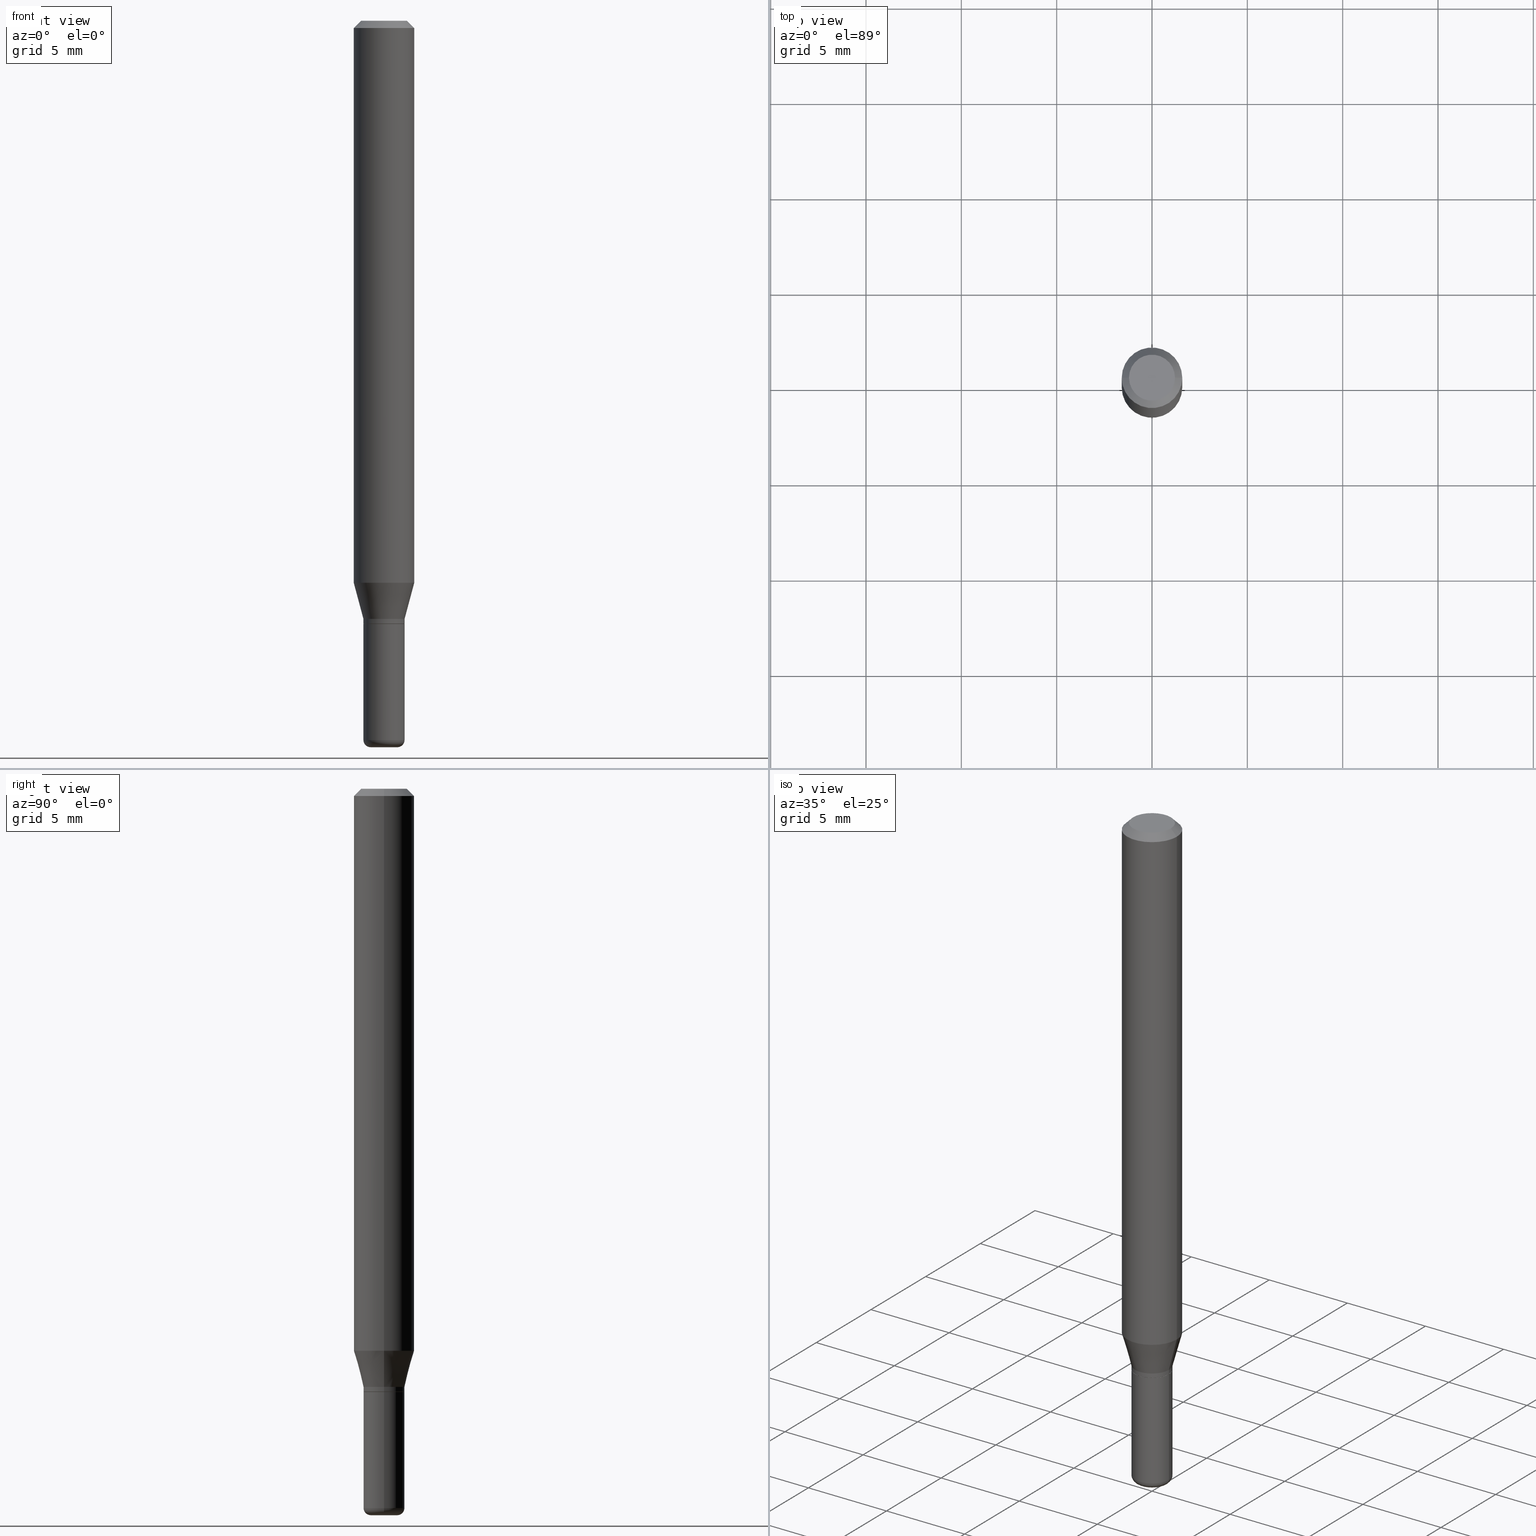
[diagram: canonical four-view strip — front | top / right | iso, engineering-drawing reading convention]
A machine part, canonical four-view strip (front | top / right | iso — engineering-drawing reading convention). The complete STEP part file that produces these views, byte-faithful:
ISO-10303-21;
HEADER;
FILE_DESCRIPTION (( 'STEP AP203' ),
    '1' );
FILE_NAME ('08572.STEP',
    '2024-02-29T19:50:06',
    ( '' ),
    ( '' ),
    'SwSTEP 2.0',
    'SolidWorks 2023',
    '' );
FILE_SCHEMA (( 'CONFIG_CONTROL_DESIGN' ));
ENDSEC;

DATA;
#1 = ADVANCED_FACE ( 'NONE', ( #248 ), #411, .T. ) ;
#2 = ORIENTED_EDGE ( 'NONE', *, *, #174, .F. ) ;
#3 = AXIS2_PLACEMENT_3D ( 'NONE', #463, #349, #394 ) ;
#4 = VECTOR ( 'NONE', #81, 39.37007874015748143 ) ;
#5 = CARTESIAN_POINT ( 'NONE',  ( 0.000000000000000000, 0.000000000000000000, 0.000000000000000000 ) ) ;
#6 = ORIENTED_EDGE ( 'NONE', *, *, #38, .F. ) ;
#7 = CARTESIAN_POINT ( 'NONE',  ( 0.02750000000000000014, -5.429253481901091458E-15, -1.500000000000000222 ) ) ;
#8 = DATE_TIME_ROLE ( 'creation_date' ) ;
#9 = ADVANCED_FACE ( 'NONE', ( #307 ), #225, .T. ) ;
#10 = FACE_OUTER_BOUND ( 'NONE', #80, .T. ) ;
#11 = ORIENTED_EDGE ( 'NONE', *, *, #407, .T. ) ;
#12 = APPROVAL_ROLE ( '' ) ;
#13 = CARTESIAN_POINT ( 'NONE',  ( 0.04249999999999997530, -4.608755367272951648E-15, -1.235000000000000098 ) ) ;
#14 = CIRCLE ( 'NONE', #261, 0.01499999999999999424 ) ;
#15 = CC_DESIGN_APPROVAL ( #97, ( #268 ) ) ;
#16 = DIRECTION ( 'NONE',  ( 1.000000000000000000, -6.982962677686266711E-15, 4.852736867747365086E-29 ) ) ;
#17 = EDGE_LOOP ( 'NONE', ( #265, #426, #82, #414 ) ) ;
#18 = EDGE_CURVE ( 'NONE', #262, #90, #392, .T. ) ;
#19 = PERSON_AND_ORGANIZATION_ROLE ( 'classification_officer' ) ;
#20 = DIRECTION ( 'NONE',  ( -0.7071067811864267805, 7.493145998869918709E-15, 0.7071067811866682540 ) ) ;
#21 = ORIENTED_EDGE ( 'NONE', *, *, #310, .F. ) ;
#22 = ORIENTED_EDGE ( 'NONE', *, *, #156, .F. ) ;
#23 = VECTOR ( 'NONE', #182, 39.37007874015748143 ) ;
#24 = AXIS2_PLACEMENT_3D ( 'NONE', #448, #86, #211 ) ;
#25 = CARTESIAN_POINT ( 'NONE',  ( -0.04249999999999998918, -4.463891364822850828E-15, -1.485000000000000098 ) ) ;
#26 = VERTEX_POINT ( 'NONE', #13 ) ;
#27 = ADVANCED_FACE ( 'NONE', ( #375 ), #479, .T. ) ;
#28 = DIRECTION ( 'NONE',  ( 1.000000000000000000, -6.982962677686266711E-15, 4.852736867747365086E-29 ) ) ;
#29 = DIRECTION ( 'NONE',  ( 1.000000000000000000, -6.982962677686276966E-15, 0.000000000000000000 ) ) ;
#30 = CARTESIAN_POINT ( 'NONE',  ( 0.000000000000000000, 0.000000000000000000, 0.000000000000000000 ) ) ;
#31 = AXIS2_PLACEMENT_3D ( 'NONE', #147, #158, #311 ) ;
#32 = AXIS2_PLACEMENT_3D ( 'NONE', #215, #454, #305 ) ;
#33 = DIRECTION ( 'NONE',  ( 1.000000000000000000, -6.982962677686265133E-15, 0.000000000000000000 ) ) ;
#34 = DIRECTION ( 'NONE',  ( 0.2588190451025209060, 1.565188264969625123E-15, 0.9659258262890682012 ) ) ;
#35 = DIRECTION ( 'NONE',  ( -2.445468806185136877E-29, 3.491481338843145188E-15, 1.000000000000000000 ) ) ;
#36 = DIRECTION ( 'NONE',  ( 1.000000000000000000, -6.982962677686276966E-15, 4.883557194083116825E-29 ) ) ;
#37 = VERTEX_POINT ( 'NONE', #340 ) ;
#38 = EDGE_CURVE ( 'NONE', #90, #165, #416, .T. ) ;
#39 = APPROVAL_DATE_TIME ( #279, #434 ) ;
#40 = CIRCLE ( 'NONE', #452, 0.04249999999999997530 ) ;
#41 = EDGE_CURVE ( 'NONE', #175, #155, #45, .T. ) ;
#42 = DIRECTION ( 'NONE',  ( 1.000000000000000000, 0.000000000000000000, 0.000000000000000000 ) ) ;
#43 = ORIENTED_EDGE ( 'NONE', *, *, #57, .F. ) ;
#44 = CARTESIAN_POINT ( 'NONE',  ( -0.04249999999999999611, -4.463891364822850828E-15, -1.244999999999999885 ) ) ;
#45 = CIRCLE ( 'NONE', #200, 0.04249999999999998918 ) ;
#46 = AXIS2_PLACEMENT_3D ( 'NONE', #88, #334, #60 ) ;
#47 = EDGE_CURVE ( 'NONE', #299, #445, #385, .T. ) ;
#48 = ADVANCED_BREP_SHAPE_REPRESENTATION ( '08572', ( #105, #453, #500 ), #438 ) ;
#49 = CARTESIAN_POINT ( 'NONE',  ( 3.668203209277704895E-29, -5.237222008264718177E-15, -1.500000000000000222 ) ) ;
#50 = CARTESIAN_POINT ( 'NONE',  ( 0.000000000000000000, 0.000000000000000000, 0.000000000000000000 ) ) ;
#51 = CYLINDRICAL_SURFACE ( 'NONE', #192, 0.04249999999999998918 ) ;
#52 = EDGE_LOOP ( 'NONE', ( #120, #402, #2, #204 ) ) ;
#53 = CYLINDRICAL_SURFACE ( 'NONE', #233, 0.06250000000000000000 ) ;
#54 = PERSON_AND_ORGANIZATION_ROLE ( 'design_supplier' ) ;
#55 = CARTESIAN_POINT ( 'NONE',  ( -6.680649051745406845E-45, 9.538196290434862081E-31, 2.731847993664263218E-16 ) ) ;
#56 = ORIENTED_EDGE ( 'NONE', *, *, #330, .F. ) ;
#57 = EDGE_CURVE ( 'NONE', #121, #383, #319, .T. ) ;
#58 = AXIS2_PLACEMENT_3D ( 'NONE', #157, #515, #284 ) ;
#59 = CALENDAR_DATE ( 2024, 29, 2 ) ;
#60 = DIRECTION ( 'NONE',  ( -1.000000000000000000, 6.982962677686266711E-15, 0.000000000000000000 ) ) ;
#61 = ORIENTED_EDGE ( 'NONE', *, *, #441, .T. ) ;
#62 = ORIENTED_EDGE ( 'NONE', *, *, #396, .F. ) ;
#63 = DIRECTION ( 'NONE',  ( -2.445468806185136597E-29, 3.491481338843145583E-15, 1.000000000000000000 ) ) ;
#64 = EDGE_CURVE ( 'NONE', #512, #373, #230, .T. ) ;
#65 = CARTESIAN_POINT ( 'NONE',  ( 0.06250000000000000000, -4.888073874380378612E-16, -0.01499999999999970281 ) ) ;
#66 = FACE_OUTER_BOUND ( 'NONE', #139, .T. ) ;
#67 = CARTESIAN_POINT ( 'NONE',  ( 3.043385929297402172E-29, -4.345148526190294354E-15, -1.244499999999999718 ) ) ;
#68 = CARTESIAN_POINT ( 'NONE',  ( -0.04249999999999998224, 3.019806626980424528E-16, -2.090547413358334159E-30 ) ) ;
#69 = LENGTH_MEASURE_WITH_UNIT ( LENGTH_MEASURE( 0.02539999999999999897 ), #195 );
#70 = AXIS2_PLACEMENT_3D ( 'NONE', #199, #129, #439 ) ;
#71 = DIRECTION ( 'NONE',  ( -2.445468806185136597E-29, 3.491481338843145583E-15, 1.000000000000000000 ) ) ;
#72 = ORIENTED_EDGE ( 'NONE', *, *, #57, .T. ) ;
#73 =( NAMED_UNIT ( * ) SI_UNIT ( $, .STERADIAN. ) SOLID_ANGLE_UNIT ( ) );
#74 = FACE_OUTER_BOUND ( 'NONE', #237, .T. ) ;
#75 = ORIENTED_EDGE ( 'NONE', *, *, #41, .F. ) ;
#76 = EDGE_LOOP ( 'NONE', ( #379, #442 ) ) ;
#77 = AXIS2_PLACEMENT_3D ( 'NONE', #437, #71, #501 ) ;
#78 = APPROVAL_PERSON_ORGANIZATION ( #95, #275, #126 ) ;
#79 = UNCERTAINTY_MEASURE_WITH_UNIT (LENGTH_MEASURE( 1.000000000000000082E-05 ), #358, 'distance_accuracy_value', 'NONE');
#80 = EDGE_LOOP ( 'NONE', ( #196, #406, #164, #102 ) ) ;
#81 = DIRECTION ( 'NONE',  ( 0.7071067811864267805, -2.468850131080992517E-15, 0.7071067811866682540 ) ) ;
#82 = ORIENTED_EDGE ( 'NONE', *, *, #18, .F. ) ;
#83 = CALENDAR_DATE ( 2024, 29, 2 ) ;
#84 = DIRECTION ( 'NONE',  ( -0.2588190451025209060, 5.211531920934547097E-15, 0.9659258262890682012 ) ) ;
#85 = ADVANCED_FACE ( 'NONE', ( #115 ), #436, .T. ) ;
#86 = DIRECTION ( 'NONE',  ( -2.445468806185136597E-29, 3.491481338843145583E-15, 1.000000000000000000 ) ) ;
#87 = SECURITY_CLASSIFICATION_LEVEL ( 'unclassified' ) ;
#88 = CARTESIAN_POINT ( 'NONE',  ( 3.668203209277632395E-31, -5.237222008264614861E-17, -0.01499999999999970281 ) ) ;
#89 = AXIS2_PLACEMENT_3D ( 'NONE', #492, #98, #256 ) ;
#90 = VERTEX_POINT ( 'NONE', #504 ) ;
#91 = VECTOR ( 'NONE', #510, 39.37007874015748143 ) ;
#92 = DIRECTION ( 'NONE',  ( -2.445468806185136597E-29, 3.491481338843145583E-15, 1.000000000000000000 ) ) ;
#93 = DIRECTION ( 'NONE',  ( -2.445468806185136597E-29, 3.491481338843145583E-15, 1.000000000000000000 ) ) ;
#94 = ADVANCED_FACE ( 'NONE', ( #226 ), #368, .T. ) ;
#95 = PERSON_AND_ORGANIZATION ( #344, #209 ) ;
#96 = FACE_OUTER_BOUND ( 'NONE', #303, .T. ) ;
#97 = APPROVAL ( #167, 'UNSPECIFIED' ) ;
#98 = DIRECTION ( 'NONE',  ( -2.445468806185136597E-29, 3.491481338843145583E-15, 1.000000000000000000 ) ) ;
#99 = DATE_TIME_ROLE ( 'classification_date' ) ;
#100 = DIRECTION ( 'NONE',  ( -2.445468806185136597E-29, 3.491481338843145583E-15, 1.000000000000000000 ) ) ;
#101 = LINE ( 'NONE', #260, #369 ) ;
#102 = ORIENTED_EDGE ( 'NONE', *, *, #424, .T. ) ;
#103 = AXIS2_PLACEMENT_3D ( 'NONE', #198, #283, #36 ) ;
#104 = AXIS2_PLACEMENT_3D ( 'NONE', #55, #140, #16 ) ;
#105 = MANIFOLD_SOLID_BREP ( 'Body-Move/Copy2[1]', #376 ) ;
#106 = ORIENTED_EDGE ( 'NONE', *, *, #64, .T. ) ;
#107 = PRODUCT ( '08572', '08572', '', ( #206 ) ) ;
#108 = CARTESIAN_POINT ( 'NONE',  ( 0.02749999999999999667, -5.376881261818443984E-15, -1.485000000000000098 ) ) ;
#109 = EDGE_CURVE ( 'NONE', #421, #175, #14, .T. ) ;
#110 = CARTESIAN_POINT ( 'NONE',  ( 3.668203209277632395E-31, -5.237222008264614861E-17, -0.01499999999999970281 ) ) ;
#111 = CIRCLE ( 'NONE', #31, 0.06250000000000000000 ) ;
#112 = AXIS2_PLACEMENT_3D ( 'NONE', #491, #142, #258 ) ;
#113 = DIRECTION ( 'NONE',  ( -2.438088387897960049E-29, 3.491481338843145188E-15, 1.000000000000000000 ) ) ;
#114 = DIRECTION ( 'NONE',  ( -2.445468806185136877E-29, 3.491481338843145188E-15, 1.000000000000000000 ) ) ;
#115 = FACE_OUTER_BOUND ( 'NONE', #363, .T. ) ;
#116 = CARTESIAN_POINT ( 'NONE',  ( 0.04199999999999998873, -4.640178699322539502E-15, -1.244999999999999885 ) ) ;
#117 = CONICAL_SURFACE ( 'NONE', #77, 0.04249999999999997530, 0.2617993877991495744 ) ;
#118 = LOCAL_TIME ( 14, 50, 6.000000000000000000, #288 ) ;
#119 = DIRECTION ( 'NONE',  ( 1.000000000000000000, -6.982962677686276966E-15, 0.000000000000000000 ) ) ;
#120 = ORIENTED_EDGE ( 'NONE', *, *, #18, .T. ) ;
#121 = VERTEX_POINT ( 'NONE', #357 ) ;
#122 = DIRECTION ( 'NONE',  ( 1.000000000000000000, -6.982962677686266711E-15, 0.000000000000000000 ) ) ;
#123 = VECTOR ( 'NONE', #114, 39.37007874015748143 ) ;
#124 = CIRCLE ( 'NONE', #294, 0.02750000000000000014 ) ;
#125 = ORIENTED_EDGE ( 'NONE', *, *, #174, .T. ) ;
#126 = APPROVAL_ROLE ( '' ) ;
#127 = ORIENTED_EDGE ( 'NONE', *, *, #47, .T. ) ;
#128 = CC_DESIGN_PERSON_AND_ORGANIZATION_ASSIGNMENT ( #172, #404, ( #350 ) ) ;
#129 = DIRECTION ( 'NONE',  ( 2.438088387897960049E-29, -3.491481338843145188E-15, -1.000000000000000000 ) ) ;
#130 = CARTESIAN_POINT ( 'NONE',  ( 0.04249999999999997530, -4.608755367272951648E-15, -1.235000000000000098 ) ) ;
#131 = APPROVAL_STATUS ( 'not_yet_approved' ) ;
#132 = PLANE ( 'NONE',  #480 ) ;
#133 = ORIENTED_EDGE ( 'NONE', *, *, #205, .T. ) ;
#134 = AXIS2_PLACEMENT_3D ( 'NONE', #462, #331, #485 ) ;
#135 = ORIENTED_EDGE ( 'NONE', *, *, #278, .F. ) ;
#136 = CIRCLE ( 'NONE', #263, 0.04249999999999998918 ) ;
#137 = PERSON_AND_ORGANIZATION_ROLE ( 'design_owner' ) ;
#138 = DIRECTION ( 'NONE',  ( 1.000000000000000000, -6.982962677686267499E-15, 4.876176775795935793E-29 ) ) ;
#139 = EDGE_LOOP ( 'NONE', ( #371, #328, #75, #487 ) ) ;
#140 = DIRECTION ( 'NONE',  ( -2.445468806185136597E-29, 3.491481338843145583E-15, 1.000000000000000000 ) ) ;
#141 = ORIENTED_EDGE ( 'NONE', *, *, #109, .T. ) ;
#142 = DIRECTION ( 'NONE',  ( -2.445468806185136597E-29, 3.491481338843145583E-15, 1.000000000000000000 ) ) ;
#143 = EDGE_LOOP ( 'NONE', ( #213, #365, #11, #22 ) ) ;
#144 = CC_DESIGN_PERSON_AND_ORGANIZATION_ASSIGNMENT ( #178, #19, ( #409 ) ) ;
#145 = EDGE_CURVE ( 'NONE', #37, #421, #461, .T. ) ;
#146 = DIRECTION ( 'NONE',  ( 1.000000000000000000, -6.982962677686276966E-15, 0.000000000000000000 ) ) ;
#147 = CARTESIAN_POINT ( 'NONE',  ( 2.837621698978489098E-29, -4.051371738466460595E-15, -1.160358983848622572 ) ) ;
#148 = ORIENTED_EDGE ( 'NONE', *, *, #470, .F. ) ;
#149 = DIRECTION ( 'NONE',  ( 1.000000000000000000, -6.982962677686266711E-15, 4.876176775795935793E-29 ) ) ;
#150 = LINE ( 'NONE', #229, #227 ) ;
#151 = AXIS2_PLACEMENT_3D ( 'NONE', #389, #309, #33 ) ;
#152 = CC_DESIGN_APPROVAL ( #275, ( #350 ) ) ;
#153 = ADVANCED_FACE ( 'NONE', ( #468 ), #361, .T. ) ;
#154 = CARTESIAN_POINT ( 'NONE',  ( 3.044608663700494973E-29, -4.346894266859715858E-15, -1.244999999999999885 ) ) ;
#155 = VERTEX_POINT ( 'NONE', #25 ) ;
#156 = EDGE_CURVE ( 'NONE', #90, #262, #111, .T. ) ;
#157 = CARTESIAN_POINT ( 'NONE',  ( 3.043385929297402172E-29, -4.345148526190294354E-15, -1.244499999999999718 ) ) ;
#158 = DIRECTION ( 'NONE',  ( -2.445468806185136597E-29, 3.491481338843145583E-15, 1.000000000000000000 ) ) ;
#159 = DIRECTION ( 'NONE',  ( -2.445468806185136597E-29, 3.491481338843145583E-15, 1.000000000000000000 ) ) ;
#160 = SHAPE_DEFINITION_REPRESENTATION ( #466, #48 ) ;
#161 = AXIS2_PLACEMENT_3D ( 'NONE', #433, #465, #28 ) ;
#162 = CARTESIAN_POINT ( 'NONE',  ( 3.044608663700494973E-29, -4.346894266859715858E-15, -1.244999999999999885 ) ) ;
#163 = ORIENTED_EDGE ( 'NONE', *, *, #278, .T. ) ;
#164 = ORIENTED_EDGE ( 'NONE', *, *, #356, .T. ) ;
#165 = VERTEX_POINT ( 'NONE', #318 ) ;
#166 = EDGE_CURVE ( 'NONE', #171, #316, #326, .T. ) ;
#167 = APPROVAL_STATUS ( 'not_yet_approved' ) ;
#168 = CC_DESIGN_DATE_AND_TIME_ASSIGNMENT ( #257, #99, ( #409 ) ) ;
#169 = VECTOR ( 'NONE', #20, 39.37007874015748143 ) ;
#170 = FACE_OUTER_BOUND ( 'NONE', #231, .T. ) ;
#171 = VERTEX_POINT ( 'NONE', #469 ) ;
#172 = PERSON_AND_ORGANIZATION ( #344, #209 ) ;
#173 = DIRECTION ( 'NONE',  ( 1.000000000000000000, -6.982962677686269077E-15, 0.000000000000000000 ) ) ;
#174 = EDGE_CURVE ( 'NONE', #203, #165, #398, .T. ) ;
#175 = VERTEX_POINT ( 'NONE', #190 ) ;
#176 = CALENDAR_DATE ( 2024, 29, 2 ) ;
#177 = VECTOR ( 'NONE', #267, 39.37007874015748143 ) ;
#178 = PERSON_AND_ORGANIZATION ( #344, #209 ) ;
#179 = DIRECTION ( 'NONE',  ( 1.000000000000000000, -6.982962677686267499E-15, 4.876176775795935793E-29 ) ) ;
#180 = ORIENTED_EDGE ( 'NONE', *, *, #345, .F. ) ;
#181 = CALENDAR_DATE ( 2024, 29, 2 ) ;
#182 = DIRECTION ( 'NONE',  ( -0.7071067811865479058, 2.468850131082261005E-15, -0.7071067811865471286 ) ) ;
#183 = VERTEX_POINT ( 'NONE', #429 ) ;
#184 = DIRECTION ( 'NONE',  ( 1.000000000000000000, -6.982962677686266711E-15, 0.000000000000000000 ) ) ;
#185 = CONICAL_SURFACE ( 'NONE', #46, 0.06250000000000000000, 0.7853981633974488341 ) ;
#186 = CC_DESIGN_APPROVAL ( #434, ( #409 ) ) ;
#187 = DIRECTION ( 'NONE',  ( 1.000000000000000000, -6.982962677686270655E-15, 0.000000000000000000 ) ) ;
#188 = DIRECTION ( 'NONE',  ( -2.445468806185136877E-29, 3.491481338843145188E-15, 1.000000000000000000 ) ) ;
#189 = DIRECTION ( 'NONE',  ( -2.445468806185136877E-29, 3.491481338843145188E-15, 1.000000000000000000 ) ) ;
#190 = CARTESIAN_POINT ( 'NONE',  ( 0.04249999999999998918, -5.481625701983738143E-15, -1.485000000000000098 ) ) ;
#191 = ORIENTED_EDGE ( 'NONE', *, *, #266, .F. ) ;
#192 = AXIS2_PLACEMENT_3D ( 'NONE', #496, #255, #138 ) ;
#193 = DIRECTION ( 'NONE',  ( -6.982962677686266711E-15, -1.000000000000000000, 3.491481338843145583E-15 ) ) ;
#194 = CARTESIAN_POINT ( 'NONE',  ( 0.06250000000000000000, -4.364351673553916694E-16, 3.047610484872459871E-30 ) ) ;
#195 =( LENGTH_UNIT ( ) NAMED_UNIT ( * ) SI_UNIT ( $, .METRE. ) );
#196 = ORIENTED_EDGE ( 'NONE', *, *, #509, .F. ) ;
#197 = ADVANCED_FACE ( 'NONE', ( #234 ), #117, .T. ) ;
#198 = CARTESIAN_POINT ( 'NONE',  ( 3.631521177184928138E-29, -5.184849788182071492E-15, -1.485000000000000098 ) ) ;
#199 = CARTESIAN_POINT ( 'NONE',  ( 2.967759138016967261E-16, 0.04249999999999565237, -1.245000000000000329 ) ) ;
#200 = AXIS2_PLACEMENT_3D ( 'NONE', #352, #63, #274 ) ;
#201 = AXIS2_PLACEMENT_3D ( 'NONE', #378, #298, #339 ) ;
#202 = CARTESIAN_POINT ( 'NONE',  ( -0.04249999999999997530, -4.009998790773243334E-15, -1.235000000000000098 ) ) ;
#203 = VERTEX_POINT ( 'NONE', #65 ) ;
#204 = ORIENTED_EDGE ( 'NONE', *, *, #431, .F. ) ;
#205 = EDGE_CURVE ( 'NONE', #183, #26, #150, .T. ) ;
#206 = MECHANICAL_CONTEXT ( 'NONE', #228, 'mechanical' ) ;
#207 = CONICAL_SURFACE ( 'NONE', #498, 0.04199999999999998873, 0.7853981633972775267 ) ;
#208 = FACE_OUTER_BOUND ( 'NONE', #440, .T. ) ;
#209 = ORGANIZATION ( 'UNSPECIFIED', 'UNSPECIFIED', '' ) ;
#210 = ORIENTED_EDGE ( 'NONE', *, *, #356, .F. ) ;
#211 = DIRECTION ( 'NONE',  ( 1.000000000000000000, -6.982962677686265133E-15, 0.000000000000000000 ) ) ;
#212 = PERSON_AND_ORGANIZATION ( #344, #209 ) ;
#213 = ORIENTED_EDGE ( 'NONE', *, *, #236, .F. ) ;
#214 = DIRECTION ( 'NONE',  ( -2.445468806185136597E-29, 3.491481338843145583E-15, 1.000000000000000000 ) ) ;
#215 = CARTESIAN_POINT ( 'NONE',  ( 3.020153975638643988E-29, -4.311979453471284998E-15, -1.235000000000000098 ) ) ;
#216 = DIRECTION ( 'NONE',  ( 1.000000000000000000, -6.982962677686262766E-15, 0.000000000000000000 ) ) ;
#217 = CARTESIAN_POINT ( 'NONE',  ( 3.044608663700494973E-29, -4.346894266859715858E-15, -1.244999999999999885 ) ) ;
#218 = CONICAL_SURFACE ( 'NONE', #505, 0.04199999999999998873, 0.7853981633972775267 ) ;
#219 = ORIENTED_EDGE ( 'NONE', *, *, #166, .T. ) ;
#220 = CIRCLE ( 'NONE', #201, 0.01499999999999999424 ) ;
#221 = ORIENTED_EDGE ( 'NONE', *, *, #41, .T. ) ;
#222 = ADVANCED_FACE ( 'NONE', ( #312 ), #467, .F. ) ;
#223 = ADVANCED_FACE ( 'NONE', ( #66 ), #443, .T. ) ;
#224 = FACE_OUTER_BOUND ( 'NONE', #348, .T. ) ;
#225 = CYLINDRICAL_SURFACE ( 'NONE', #134, 0.06250000000000000000 ) ;
#226 = FACE_OUTER_BOUND ( 'NONE', #289, .T. ) ;
#227 = VECTOR ( 'NONE', #188, 39.37007874015748143 ) ;
#228 = APPLICATION_CONTEXT ( 'configuration controlled 3d designs of mechanical parts and assemblies' ) ;
#229 = CARTESIAN_POINT ( 'NONE',  ( 0.04249999999999998224, -2.967759138016662563E-16, 2.072375129713271801E-30 ) ) ;
#230 = LINE ( 'NONE', #68, #123 ) ;
#231 = EDGE_LOOP ( 'NONE', ( #219, #163 ) ) ;
#232 = DIRECTION ( 'NONE',  ( -2.445468806185136597E-29, 3.491481338843145583E-15, 1.000000000000000000 ) ) ;
#233 = AXIS2_PLACEMENT_3D ( 'NONE', #456, #359, #149 ) ;
#234 = FACE_OUTER_BOUND ( 'NONE', #143, .T. ) ;
#235 = EDGE_LOOP ( 'NONE', ( #72, #472 ) ) ;
#236 = EDGE_CURVE ( 'NONE', #373, #90, #362, .T. ) ;
#237 = EDGE_LOOP ( 'NONE', ( #343, #244, #451, #324 ) ) ;
#238 = ORIENTED_EDGE ( 'NONE', *, *, #317, .F. ) ;
#239 = LOCAL_TIME ( 14, 50, 6.000000000000000000, #297 ) ;
#240 = EDGE_CURVE ( 'NONE', #175, #121, #516, .T. ) ;
#241 = CC_DESIGN_DATE_AND_TIME_ASSIGNMENT ( #490, #8, ( #268 ) ) ;
#242 = FACE_OUTER_BOUND ( 'NONE', #235, .T. ) ;
#243 = CARTESIAN_POINT ( 'NONE',  ( 0.000000000000000000, 0.000000000000000000, 0.000000000000000000 ) ) ;
#244 = ORIENTED_EDGE ( 'NONE', *, *, #345, .T. ) ;
#245 = AXIS2_PLACEMENT_3D ( 'NONE', #50, #335, #296 ) ;
#246 = DATE_AND_TIME ( #481, #239 ) ;
#247 = LINE ( 'NONE', #370, #23 ) ;
#248 = FACE_OUTER_BOUND ( 'NONE', #518, .T. ) ;
#249 = ADVANCED_FACE ( 'NONE', ( #511 ), #218, .T. ) ;
#250 = DIRECTION ( 'NONE',  ( 1.000000000000000000, -6.982962677686279332E-15, 0.000000000000000000 ) ) ;
#251 = EDGE_LOOP ( 'NONE', ( #238, #460, #141, #56 ) ) ;
#252 = APPLICATION_CONTEXT ( 'configuration controlled 3d designs of mechanical parts and assemblies' ) ;
#253 = DATE_AND_TIME ( #83, #118 ) ;
#254 = ADVANCED_FACE ( 'NONE', ( #74 ), #207, .T. ) ;
#255 = DIRECTION ( 'NONE',  ( -2.445468806185136597E-29, 3.491481338843145583E-15, 1.000000000000000000 ) ) ;
#256 = DIRECTION ( 'NONE',  ( 1.000000000000000000, -6.982962677686276966E-15, 4.883557194083116825E-29 ) ) ;
#257 = DATE_AND_TIME ( #59, #444 ) ;
#258 = DIRECTION ( 'NONE',  ( 1.000000000000000000, -6.982962677686276966E-15, 0.000000000000000000 ) ) ;
#259 = ADVANCED_FACE ( 'NONE', ( #10 ), #185, .T. ) ;
#260 = CARTESIAN_POINT ( 'NONE',  ( 0.06250000000000000000, -4.811533449433669144E-16, -0.01499999999999970281 ) ) ;
#261 = AXIS2_PLACEMENT_3D ( 'NONE', #108, #193, #187 ) ;
#262 = VERTEX_POINT ( 'NONE', #295 ) ;
#263 = AXIS2_PLACEMENT_3D ( 'NONE', #67, #388, #29 ) ;
#264 = CC_DESIGN_PERSON_AND_ORGANIZATION_ASSIGNMENT ( #446, #54, ( #350 ) ) ;
#265 = ORIENTED_EDGE ( 'NONE', *, *, #300, .T. ) ;
#266 = EDGE_CURVE ( 'NONE', #373, #26, #280, .T. ) ;
#267 = DIRECTION ( 'NONE',  ( -2.445468806185136877E-29, 3.491481338843145188E-15, 1.000000000000000000 ) ) ;
#268 = PRODUCT_DEFINITION ( 'UNKNOWN', '', #350, #401 ) ;
#269 = DIRECTION ( 'NONE',  ( -2.445468806185136597E-29, 3.491481338843145583E-15, 1.000000000000000000 ) ) ;
#270 = CIRCLE ( 'NONE', #104, 0.04750000000000000749 ) ;
#271 = LINE ( 'NONE', #430, #286 ) ;
#272 = DIRECTION ( 'NONE',  ( 1.000000000000000000, -6.982962677686265922E-15, 4.876176775795935793E-29 ) ) ;
#273 = CARTESIAN_POINT ( 'NONE',  ( -0.04249999999999998918, -4.043167863492251113E-15, -1.244499999999999718 ) ) ;
#274 = DIRECTION ( 'NONE',  ( 1.000000000000000000, -6.982962677686276966E-15, 0.000000000000000000 ) ) ;
#275 = APPROVAL ( #131, 'UNSPECIFIED' ) ;
#276 = LINE ( 'NONE', #194, #91 ) ;
#277 = DIRECTION ( 'NONE',  ( -2.445468806185136597E-29, 3.491481338843145583E-15, 1.000000000000000000 ) ) ;
#278 = EDGE_CURVE ( 'NONE', #316, #171, #270, .T. ) ;
#279 = DATE_AND_TIME ( #181, #320 ) ;
#280 = CIRCLE ( 'NONE', #32, 0.04249999999999997530 ) ;
#281 = APPROVAL_PERSON_ORGANIZATION ( #212, #97, #12 ) ;
#282 = ORIENTED_EDGE ( 'NONE', *, *, #517, .T. ) ;
#283 = DIRECTION ( 'NONE',  ( -2.445468806185136597E-29, 3.491481338843145583E-15, 1.000000000000000000 ) ) ;
#284 = DIRECTION ( 'NONE',  ( 1.000000000000000000, -6.982962677686276966E-15, 0.000000000000000000 ) ) ;
#285 = ORIENTED_EDGE ( 'NONE', *, *, #441, .F. ) ;
#286 = VECTOR ( 'NONE', #189, 39.37007874015748143 ) ;
#287 = ORIENTED_EDGE ( 'NONE', *, *, #156, .T. ) ;
#288 = COORDINATED_UNIVERSAL_TIME_OFFSET ( 5, 0, .BEHIND. ) ;
#289 = EDGE_LOOP ( 'NONE', ( #135, #447, #125, #210 ) ) ;
#290 = CARTESIAN_POINT ( 'NONE',  ( 3.316907271900976589E-16, 0.04750000000000000749, -2.925296391183627249E-17 ) ) ;
#291 = CARTESIAN_POINT ( 'NONE',  ( 2.837621698978489098E-29, -4.051371738466460595E-15, -1.160358983848622572 ) ) ;
#292 = EDGE_CURVE ( 'NONE', #421, #37, #124, .T. ) ;
#293 = VECTOR ( 'NONE', #84, 39.37007874015748143 ) ;
#294 = AXIS2_PLACEMENT_3D ( 'NONE', #49, #92, #250 ) ;
#295 = CARTESIAN_POINT ( 'NONE',  ( 0.06250000000000000000, -4.487806905821851475E-15, -1.160358983848622572 ) ) ;
#296 = DIRECTION ( 'NONE',  ( 1.000000000000000000, -6.982962677686267499E-15, 4.876176775795935793E-29 ) ) ;
#297 = COORDINATED_UNIVERSAL_TIME_OFFSET ( 5, 0, .BEHIND. ) ;
#298 = DIRECTION ( 'NONE',  ( 7.105427357601001859E-15, 1.000000000000000000, -3.491481338843145583E-15 ) ) ;
#299 = VERTEX_POINT ( 'NONE', #410 ) ;
#300 = EDGE_CURVE ( 'NONE', #26, #373, #40, .T. ) ;
#301 = APPROVAL_STATUS ( 'not_yet_approved' ) ;
#302 = DIRECTION ( 'NONE',  ( 1.000000000000000000, -6.982962677686276966E-15, 0.000000000000000000 ) ) ;
#303 = EDGE_LOOP ( 'NONE', ( #285, #382, #494, #148 ) ) ;
#304 = ADVANCED_FACE ( 'NONE', ( #96 ), #51, .T. ) ;
#305 = DIRECTION ( 'NONE',  ( 1.000000000000000000, -6.982962677686269077E-15, 0.000000000000000000 ) ) ;
#306 = VECTOR ( 'NONE', #35, 39.37007874015748143 ) ;
#307 = FACE_OUTER_BOUND ( 'NONE', #497, .T. ) ;
#308 = VECTOR ( 'NONE', #34, 39.37007874015748143 ) ;
#309 = DIRECTION ( 'NONE',  ( -2.445468806185136597E-29, 3.491481338843145583E-15, 1.000000000000000000 ) ) ;
#310 = EDGE_CURVE ( 'NONE', #445, #299, #419, .T. ) ;
#311 = DIRECTION ( 'NONE',  ( 1.000000000000000000, -6.982962677686262766E-15, 0.000000000000000000 ) ) ;
#312 = FACE_OUTER_BOUND ( 'NONE', #76, .T. ) ;
#313 = AXIS2_PLACEMENT_3D ( 'NONE', #110, #269, #184 ) ;
#314 = LOCAL_TIME ( 14, 50, 6.000000000000000000, #333 ) ;
#315 = CARTESIAN_POINT ( 'NONE',  ( -0.06250000000000000000, 4.440892098500626162E-16, -3.074334431409316114E-30 ) ) ;
#316 = VERTEX_POINT ( 'NONE', #413 ) ;
#317 = EDGE_CURVE ( 'NONE', #37, #155, #220, .T. ) ;
#318 = CARTESIAN_POINT ( 'NONE',  ( -0.06250000000000000000, -1.607782769424490432E-15, -0.01499999999999970281 ) ) ;
#319 = CIRCLE ( 'NONE', #151, 0.04249999999999999611 ) ;
#320 = LOCAL_TIME ( 14, 50, 6.000000000000000000, #380 ) ;
#321 = DIRECTION ( 'NONE',  ( -2.445468806185136597E-29, 3.491481338843145583E-15, 1.000000000000000000 ) ) ;
#322 = ORIENTED_EDGE ( 'NONE', *, *, #240, .F. ) ;
#323 = LINE ( 'NONE', #476, #4 ) ;
#324 = ORIENTED_EDGE ( 'NONE', *, *, #499, .F. ) ;
#325 = FACE_OUTER_BOUND ( 'NONE', #52, .T. ) ;
#326 = CIRCLE ( 'NONE', #161, 0.04750000000000000749 ) ;
#327 = AXIS2_PLACEMENT_3D ( 'NONE', #5, #420, #179 ) ;
#328 = ORIENTED_EDGE ( 'NONE', *, *, #317, .T. ) ;
#329 = PLANE ( 'NONE',  #428 ) ;
#330 = EDGE_CURVE ( 'NONE', #155, #175, #386, .T. ) ;
#331 = DIRECTION ( 'NONE',  ( -2.445468806185136597E-29, 3.491481338843145583E-15, 1.000000000000000000 ) ) ;
#332 = CARTESIAN_POINT ( 'NONE',  ( 3.668203209277632395E-31, -5.237222008264614861E-17, -0.01499999999999970281 ) ) ;
#333 = COORDINATED_UNIVERSAL_TIME_OFFSET ( 5, 0, .BEHIND. ) ;
#334 = DIRECTION ( 'NONE',  ( 2.445468806185136597E-29, -3.491481338843145583E-15, -1.000000000000000000 ) ) ;
#335 = DIRECTION ( 'NONE',  ( -2.445468806185136597E-29, 3.491481338843145583E-15, 1.000000000000000000 ) ) ;
#336 = LINE ( 'NONE', #130, #308 ) ;
#337 = AXIS2_PLACEMENT_3D ( 'NONE', #154, #391, #146 ) ;
#338 = AXIS2_PLACEMENT_3D ( 'NONE', #217, #374, #302 ) ;
#339 = DIRECTION ( 'NONE',  ( -1.000000000000000000, 7.105427357600993970E-15, 0.000000000000000000 ) ) ;
#340 = CARTESIAN_POINT ( 'NONE',  ( -0.02750000000000000014, -4.962345940707360337E-15, -1.500000000000000222 ) ) ;
#341 = ADVANCED_FACE ( 'NONE', ( #208 ), #458, .T. ) ;
#342 = PRODUCT_RELATED_PRODUCT_CATEGORY ( 'detail', '', ( #107 ) ) ;
#343 = ORIENTED_EDGE ( 'NONE', *, *, #310, .T. ) ;
#344 = PERSON ( 'UNSPECIFIED', 'UNSPECIFIED', 'UNSPECIFIED', ('UNSPECIFIED'), ('UNSPECIFIED'), ('UNSPECIFIED') ) ;
#345 = EDGE_CURVE ( 'NONE', #299, #512, #484, .T. ) ;
#346 = COORDINATED_UNIVERSAL_TIME_OFFSET ( 5, 0, .BEHIND. ) ;
#347 = CARTESIAN_POINT ( 'NONE',  ( 3.020153975638643988E-29, -4.311979453471284998E-15, -1.235000000000000098 ) ) ;
#348 = EDGE_LOOP ( 'NONE', ( #21, #367 ) ) ;
#349 = DIRECTION ( 'NONE',  ( 2.445468806185136597E-29, -3.491481338843145583E-15, -1.000000000000000000 ) ) ;
#350 = PRODUCT_DEFINITION_FORMATION_WITH_SPECIFIED_SOURCE ( 'ANY', '', #107, .NOT_KNOWN. ) ;
#351 = DIRECTION ( 'NONE',  ( 1.000000000000000000, -6.982962677686267499E-15, 4.876176775795935793E-29 ) ) ;
#352 = CARTESIAN_POINT ( 'NONE',  ( 3.631521177184928138E-29, -5.184849788182071492E-15, -1.485000000000000098 ) ) ;
#353 = CARTESIAN_POINT ( 'NONE',  ( 3.582686580359766038E-29, -5.359686688179453325E-15, -1.500000000000000222 ) ) ;
#354 = AXIS2_PLACEMENT_3D ( 'NONE', #291, #93, #216 ) ;
#355 = APPROVAL_PERSON_ORGANIZATION ( #495, #434, #418 ) ;
#356 = EDGE_CURVE ( 'NONE', #171, #165, #247, .T. ) ;
#357 = CARTESIAN_POINT ( 'NONE',  ( 0.04249999999999999611, -4.643670180661382509E-15, -1.244999999999999885 ) ) ;
#358 =( CONVERSION_BASED_UNIT ( 'INCH', #69 ) LENGTH_UNIT ( ) NAMED_UNIT ( #482 ) );
#359 = DIRECTION ( 'NONE',  ( -2.445468806185136597E-29, 3.491481338843145583E-15, 1.000000000000000000 ) ) ;
#360 = CC_DESIGN_PERSON_AND_ORGANIZATION_ASSIGNMENT ( #457, #137, ( #107 ) ) ;
#361 = CONICAL_SURFACE ( 'NONE', #408, 0.04249999999999997530, 0.2617993877991495744 ) ;
#362 = LINE ( 'NONE', #202, #293 ) ;
#363 = EDGE_LOOP ( 'NONE', ( #221, #61, #43, #322 ) ) ;
#364 = APPLICATION_PROTOCOL_DEFINITION ( 'international standard', 'config_control_design', 1994, #228 ) ;
#365 = ORIENTED_EDGE ( 'NONE', *, *, #266, .T. ) ;
#366 = PERSON_AND_ORGANIZATION_ROLE ( 'creator' ) ;
#367 = ORIENTED_EDGE ( 'NONE', *, *, #47, .F. ) ;
#368 = CONICAL_SURFACE ( 'NONE', #3, 0.06250000000000000000, 0.7853981633974488341 ) ;
#369 = VECTOR ( 'NONE', #464, 39.37007874015748143 ) ;
#370 = CARTESIAN_POINT ( 'NONE',  ( -0.06250000000000000000, 3.840629472727455270E-16, -0.01499999999999970281 ) ) ;
#371 = ORIENTED_EDGE ( 'NONE', *, *, #292, .T. ) ;
#372 = APPROVAL_DATE_TIME ( #246, #97 ) ;
#373 = VERTEX_POINT ( 'NONE', #405 ) ;
#374 = DIRECTION ( 'NONE',  ( -2.445468806185136597E-29, 3.491481338843145583E-15, 1.000000000000000000 ) ) ;
#375 = FACE_OUTER_BOUND ( 'NONE', #251, .T. ) ;
#376 = CLOSED_SHELL ( 'NONE', ( #223, #85, #503, #304, #27, #222 ) ) ;
#377 = CIRCLE ( 'NONE', #58, 0.04249999999999998918 ) ;
#378 = CARTESIAN_POINT ( 'NONE',  ( -0.02749999999999999667, -4.989450535848043373E-15, -1.485000000000000098 ) ) ;
#379 = ORIENTED_EDGE ( 'NONE', *, *, #292, .F. ) ;
#380 = COORDINATED_UNIVERSAL_TIME_OFFSET ( 5, 0, .BEHIND. ) ;
#381 = CARTESIAN_POINT ( 'NONE',  ( -0.04199999999999998873, -4.048466317840474304E-15, -1.244999999999999885 ) ) ;
#382 = ORIENTED_EDGE ( 'NONE', *, *, #330, .T. ) ;
#383 = VERTEX_POINT ( 'NONE', #44 ) ;
#384 = ADVANCED_FACE ( 'NONE', ( #170 ), #132, .F. ) ;
#385 = CIRCLE ( 'NONE', #337, 0.04199999999999998873 ) ;
#386 = CIRCLE ( 'NONE', #112, 0.04249999999999998918 ) ;
#387 = DIRECTION ( 'NONE',  ( 1.000000000000000000, -6.982962677686269077E-15, 0.000000000000000000 ) ) ;
#388 = DIRECTION ( 'NONE',  ( -2.445468806185136597E-29, 3.491481338843145583E-15, 1.000000000000000000 ) ) ;
#389 = CARTESIAN_POINT ( 'NONE',  ( 3.044608663700494973E-29, -4.346894266859715858E-15, -1.244999999999999885 ) ) ;
#390 = ORIENTED_EDGE ( 'NONE', *, *, #431, .T. ) ;
#391 = DIRECTION ( 'NONE',  ( -2.445468806185136597E-29, 3.491481338843145583E-15, 1.000000000000000000 ) ) ;
#392 = CIRCLE ( 'NONE', #354, 0.06250000000000000000 ) ;
#393 = AXIS2_PLACEMENT_3D ( 'NONE', #332, #214, #122 ) ;
#394 = DIRECTION ( 'NONE',  ( -1.000000000000000000, 6.982962677686266711E-15, 0.000000000000000000 ) ) ;
#395 = ORIENTED_EDGE ( 'NONE', *, *, #64, .F. ) ;
#396 = EDGE_CURVE ( 'NONE', #512, #183, #136, .T. ) ;
#397 = ORIENTED_EDGE ( 'NONE', *, *, #205, .F. ) ;
#398 = CIRCLE ( 'NONE', #313, 0.06250000000000000000 ) ;
#399 = CIRCLE ( 'NONE', #24, 0.04249999999999999611 ) ;
#400 =( NAMED_UNIT ( * ) PLANE_ANGLE_UNIT ( ) SI_UNIT ( $, .RADIAN. ) );
#401 = DESIGN_CONTEXT ( 'detailed design', #252, 'design' ) ;
#402 = ORIENTED_EDGE ( 'NONE', *, *, #38, .T. ) ;
#403 = ADVANCED_FACE ( 'NONE', ( #224 ), #329, .F. ) ;
#404 = PERSON_AND_ORGANIZATION_ROLE ( 'creator' ) ;
#405 = CARTESIAN_POINT ( 'NONE',  ( -0.04249999999999997530, -3.808640659694820656E-15, -1.235000000000000098 ) ) ;
#406 = ORIENTED_EDGE ( 'NONE', *, *, #166, .F. ) ;
#407 = EDGE_CURVE ( 'NONE', #26, #262, #336, .T. ) ;
#408 = AXIS2_PLACEMENT_3D ( 'NONE', #508, #232, #387 ) ;
#409 = SECURITY_CLASSIFICATION ( '', '', #87 ) ;
#410 = CARTESIAN_POINT ( 'NONE',  ( -0.04199999999999998873, -4.045817090666362314E-15, -1.244999999999999885 ) ) ;
#411 = CYLINDRICAL_SURFACE ( 'NONE', #245, 0.04249999999999998224 ) ;
#412 = DIRECTION ( 'NONE',  ( -2.438088387897960049E-29, 3.491481338843145188E-15, 1.000000000000000000 ) ) ;
#413 = CARTESIAN_POINT ( 'NONE',  ( 0.04750000000000000749, -4.035134999187568762E-16, 2.731847993664288856E-16 ) ) ;
#414 = ORIENTED_EDGE ( 'NONE', *, *, #407, .F. ) ;
#415 = APPROVAL_DATE_TIME ( #253, #275 ) ;
#416 = LINE ( 'NONE', #315, #177 ) ;
#417 = AXIS2_PLACEMENT_3D ( 'NONE', #502, #277, #425 ) ;
#418 = APPROVAL_ROLE ( '' ) ;
#419 = CIRCLE ( 'NONE', #338, 0.04199999999999998873 ) ;
#420 = DIRECTION ( 'NONE',  ( -2.445468806185136597E-29, 3.491481338843145583E-15, 1.000000000000000000 ) ) ;
#421 = VERTEX_POINT ( 'NONE', #7 ) ;
#422 = CC_DESIGN_PERSON_AND_ORGANIZATION_ASSIGNMENT ( #449, #366, ( #268 ) ) ;
#423 = ORIENTED_EDGE ( 'NONE', *, *, #424, .F. ) ;
#424 = EDGE_CURVE ( 'NONE', #165, #203, #489, .T. ) ;
#425 = DIRECTION ( 'NONE',  ( 1.000000000000000000, -6.982962677686279332E-15, 0.000000000000000000 ) ) ;
#426 = ORIENTED_EDGE ( 'NONE', *, *, #236, .T. ) ;
#427 = CLOSED_SHELL ( 'NONE', ( #341, #254, #94, #435, #153, #197, #9, #259, #384, #403, #249, #1 ) ) ;
#428 = AXIS2_PLACEMENT_3D ( 'NONE', #486, #412, #475 ) ;
#429 = CARTESIAN_POINT ( 'NONE',  ( 0.04249999999999998918, -4.641924439991961005E-15, -1.244499999999999718 ) ) ;
#430 = CARTESIAN_POINT ( 'NONE',  ( -0.04249999999999998918, 3.019806626980425021E-16, -2.090547413358334509E-30 ) ) ;
#431 = EDGE_CURVE ( 'NONE', #262, #203, #276, .T. ) ;
#432 = DIRECTION ( 'NONE',  ( 2.438088387897960049E-29, -3.491481338843145188E-15, -1.000000000000000000 ) ) ;
#433 = CARTESIAN_POINT ( 'NONE',  ( -6.680649051745406845E-45, 9.538196290434862081E-31, 2.731847993664263218E-16 ) ) ;
#434 = APPROVAL ( #301, 'UNSPECIFIED' ) ;
#435 = ADVANCED_FACE ( 'NONE', ( #325 ), #53, .T. ) ;
#436 = CYLINDRICAL_SURFACE ( 'NONE', #488, 0.04249999999999998918 ) ;
#437 = CARTESIAN_POINT ( 'NONE',  ( 3.020153975638643988E-29, -4.311979453471284998E-15, -1.235000000000000098 ) ) ;
#438 =( GEOMETRIC_REPRESENTATION_CONTEXT ( 3 ) GLOBAL_UNCERTAINTY_ASSIGNED_CONTEXT ( ( #79 ) ) GLOBAL_UNIT_ASSIGNED_CONTEXT ( ( #358, #400, #73 ) ) REPRESENTATION_CONTEXT ( 'NONE', 'WORKASPACE' ) );
#439 = DIRECTION ( 'NONE',  ( -1.000000000000000000, 6.982962677686265922E-15, -4.876176775795935793E-29 ) ) ;
#440 = EDGE_LOOP ( 'NONE', ( #282, #106, #459, #397 ) ) ;
#441 = EDGE_CURVE ( 'NONE', #155, #383, #271, .T. ) ;
#442 = ORIENTED_EDGE ( 'NONE', *, *, #145, .F. ) ;
#443 = TOROIDAL_SURFACE ( 'NONE', #103, 0.02749999999999999667, 0.01499999999999999424 ) ;
#444 = LOCAL_TIME ( 14, 50, 6.000000000000000000, #346 ) ;
#445 = VERTEX_POINT ( 'NONE', #116 ) ;
#446 = PERSON_AND_ORGANIZATION ( #344, #209 ) ;
#447 = ORIENTED_EDGE ( 'NONE', *, *, #509, .T. ) ;
#448 = CARTESIAN_POINT ( 'NONE',  ( 3.044608663700494973E-29, -4.346894266859715858E-15, -1.244999999999999885 ) ) ;
#449 = PERSON_AND_ORGANIZATION ( #344, #209 ) ;
#450 = DIRECTION ( 'NONE',  ( 1.000000000000000000, -6.982962677686276966E-15, 0.000000000000000000 ) ) ;
#451 = ORIENTED_EDGE ( 'NONE', *, *, #517, .F. ) ;
#452 = AXIS2_PLACEMENT_3D ( 'NONE', #347, #100, #173 ) ;
#453 = MANIFOLD_SOLID_BREP ( 'Body-Move/Copy2[2]', #427 ) ;
#454 = DIRECTION ( 'NONE',  ( -2.445468806185136597E-29, 3.491481338843145583E-15, 1.000000000000000000 ) ) ;
#455 = ORIENTED_EDGE ( 'NONE', *, *, #499, .T. ) ;
#456 = CARTESIAN_POINT ( 'NONE',  ( 0.000000000000000000, 0.000000000000000000, 0.000000000000000000 ) ) ;
#457 = PERSON_AND_ORGANIZATION ( #344, #209 ) ;
#458 = CYLINDRICAL_SURFACE ( 'NONE', #327, 0.04249999999999998224 ) ;
#459 = ORIENTED_EDGE ( 'NONE', *, *, #300, .F. ) ;
#460 = ORIENTED_EDGE ( 'NONE', *, *, #145, .T. ) ;
#461 = CIRCLE ( 'NONE', #417, 0.02750000000000000014 ) ;
#462 = CARTESIAN_POINT ( 'NONE',  ( 0.000000000000000000, 0.000000000000000000, 0.000000000000000000 ) ) ;
#463 = CARTESIAN_POINT ( 'NONE',  ( 3.668203209277632395E-31, -5.237222008264614861E-17, -0.01499999999999970281 ) ) ;
#464 = DIRECTION ( 'NONE',  ( 0.7071067811865479058, -7.319954787623257623E-15, -0.7071067811865471286 ) ) ;
#465 = DIRECTION ( 'NONE',  ( -2.445468806185136597E-29, 3.491481338843145583E-15, 1.000000000000000000 ) ) ;
#466 = PRODUCT_DEFINITION_SHAPE ( 'NONE', 'NONE',  #268 ) ;
#467 = PLANE ( 'NONE',  #514 ) ;
#468 = FACE_OUTER_BOUND ( 'NONE', #17, .T. ) ;
#469 = CARTESIAN_POINT ( 'NONE',  ( -0.04750000000000000749, 3.578768372314221353E-16, 2.731847993664239060E-16 ) ) ;
#470 = EDGE_CURVE ( 'NONE', #383, #121, #399, .T. ) ;
#471 = CC_DESIGN_SECURITY_CLASSIFICATION ( #409, ( #350 ) ) ;
#472 = ORIENTED_EDGE ( 'NONE', *, *, #470, .T. ) ;
#473 = CARTESIAN_POINT ( 'NONE',  ( 3.044608663700494973E-29, -4.346894266859715858E-15, -1.244999999999999885 ) ) ;
#474 = ORIENTED_EDGE ( 'NONE', *, *, #396, .T. ) ;
#475 = DIRECTION ( 'NONE',  ( 1.000000000000000000, -6.982962677686265922E-15, 4.876176775795935793E-29 ) ) ;
#476 = CARTESIAN_POINT ( 'NONE',  ( 0.04199999999999998873, -4.640178699322539502E-15, -1.244999999999999885 ) ) ;
#477 = CARTESIAN_POINT ( 'NONE',  ( 0.04249999999999998918, -2.967759138016663056E-16, 2.072375129713272151E-30 ) ) ;
#478 = EDGE_LOOP ( 'NONE', ( #180, #127, #455, #62 ) ) ;
#479 = TOROIDAL_SURFACE ( 'NONE', #89, 0.02749999999999999667, 0.01499999999999999424 ) ;
#480 = AXIS2_PLACEMENT_3D ( 'NONE', #290, #432, #506 ) ;
#481 = CALENDAR_DATE ( 2024, 29, 2 ) ;
#482 = DIMENSIONAL_EXPONENTS ( 1.000000000000000000, 0.000000000000000000, 0.000000000000000000, 0.000000000000000000, 0.000000000000000000, 0.000000000000000000, 0.000000000000000000 ) ;
#483 = APPLICATION_PROTOCOL_DEFINITION ( 'international standard', 'config_control_design', 1994, #252 ) ;
#484 = LINE ( 'NONE', #381, #169 ) ;
#485 = DIRECTION ( 'NONE',  ( 1.000000000000000000, -6.982962677686266711E-15, 4.876176775795935793E-29 ) ) ;
#486 = CARTESIAN_POINT ( 'NONE',  ( 3.044608663700494973E-29, -4.346894266859715858E-15, -1.244999999999999885 ) ) ;
#487 = ORIENTED_EDGE ( 'NONE', *, *, #109, .F. ) ;
#488 = AXIS2_PLACEMENT_3D ( 'NONE', #30, #507, #351 ) ;
#489 = CIRCLE ( 'NONE', #393, 0.06250000000000000000 ) ;
#490 = DATE_AND_TIME ( #176, #314 ) ;
#491 = CARTESIAN_POINT ( 'NONE',  ( 3.631521177184928138E-29, -5.184849788182071492E-15, -1.485000000000000098 ) ) ;
#492 = CARTESIAN_POINT ( 'NONE',  ( 3.631521177184928138E-29, -5.184849788182071492E-15, -1.485000000000000098 ) ) ;
#493 = DIRECTION ( 'NONE',  ( 0.000000000000000000, 0.000000000000000000, 1.000000000000000000 ) ) ;
#494 = ORIENTED_EDGE ( 'NONE', *, *, #240, .T. ) ;
#495 = PERSON_AND_ORGANIZATION ( #344, #209 ) ;
#496 = CARTESIAN_POINT ( 'NONE',  ( 0.000000000000000000, 0.000000000000000000, 0.000000000000000000 ) ) ;
#497 = EDGE_LOOP ( 'NONE', ( #6, #287, #390, #423 ) ) ;
#498 = AXIS2_PLACEMENT_3D ( 'NONE', #162, #321, #450 ) ;
#499 = EDGE_CURVE ( 'NONE', #445, #183, #323, .T. ) ;
#500 = AXIS2_PLACEMENT_3D ( 'NONE', #243, #493, #42 ) ;
#501 = DIRECTION ( 'NONE',  ( 1.000000000000000000, -6.982962677686269077E-15, 0.000000000000000000 ) ) ;
#502 = CARTESIAN_POINT ( 'NONE',  ( 3.668203209277704895E-29, -5.237222008264718177E-15, -1.500000000000000222 ) ) ;
#503 = ADVANCED_FACE ( 'NONE', ( #242 ), #513, .F. ) ;
#504 = CARTESIAN_POINT ( 'NONE',  ( -0.06250000000000000000, -3.607282528616397979E-15, -1.160358983848622572 ) ) ;
#505 = AXIS2_PLACEMENT_3D ( 'NONE', #473, #159, #119 ) ;
#506 = DIRECTION ( 'NONE',  ( -1.000000000000000000, 6.982962677686265922E-15, -4.876176775795935793E-29 ) ) ;
#507 = DIRECTION ( 'NONE',  ( -2.445468806185136597E-29, 3.491481338843145583E-15, 1.000000000000000000 ) ) ;
#508 = CARTESIAN_POINT ( 'NONE',  ( 3.020153975638643988E-29, -4.311979453471284998E-15, -1.235000000000000098 ) ) ;
#509 = EDGE_CURVE ( 'NONE', #316, #203, #101, .T. ) ;
#510 = DIRECTION ( 'NONE',  ( -2.445468806185136877E-29, 3.491481338843145188E-15, 1.000000000000000000 ) ) ;
#511 = FACE_OUTER_BOUND ( 'NONE', #478, .T. ) ;
#512 = VERTEX_POINT ( 'NONE', #273 ) ;
#513 = PLANE ( 'NONE',  #70 ) ;
#514 = AXIS2_PLACEMENT_3D ( 'NONE', #353, #113, #272 ) ;
#515 = DIRECTION ( 'NONE',  ( -2.445468806185136597E-29, 3.491481338843145583E-15, 1.000000000000000000 ) ) ;
#516 = LINE ( 'NONE', #477, #306 ) ;
#517 = EDGE_CURVE ( 'NONE', #183, #512, #377, .T. ) ;
#518 = EDGE_LOOP ( 'NONE', ( #395, #474, #133, #191 ) ) ;
ENDSEC;
END-ISO-10303-21;
